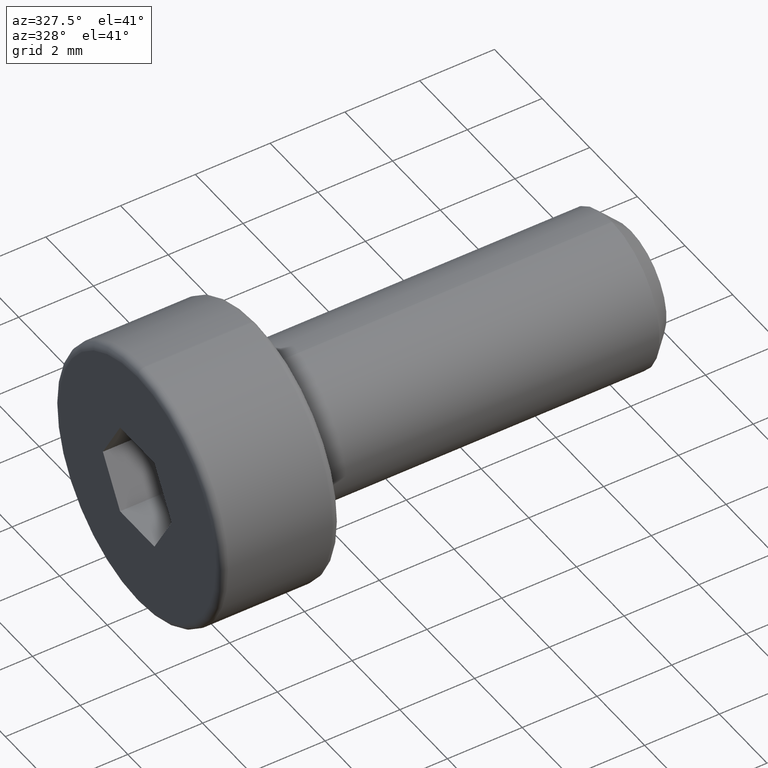
[diagram: clean part render]
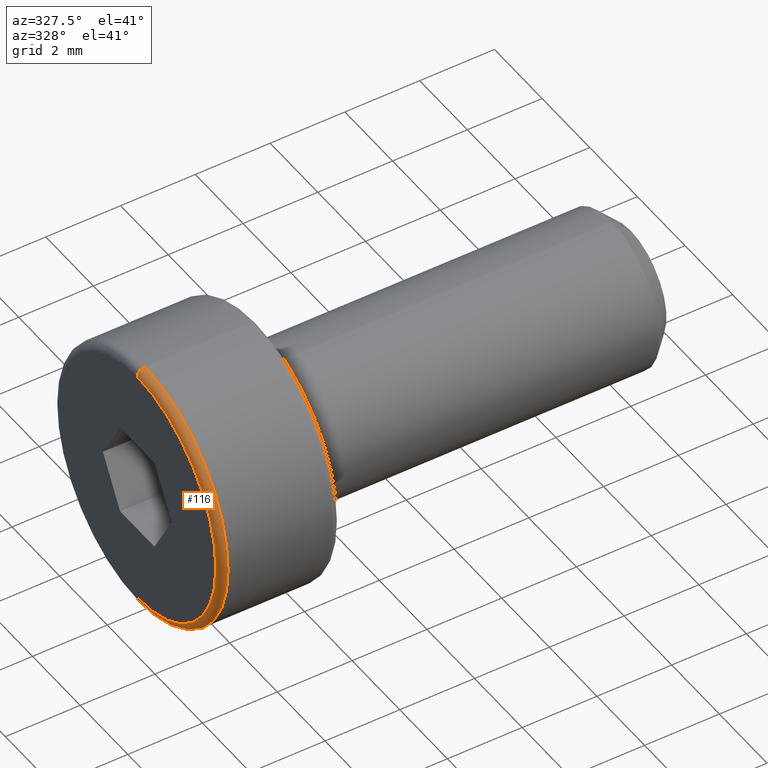
[diagram: same view with one face highlighted and labeled with its STEP entity id]
A machine part, auxiliary view. The second image highlights one B-rep face of the part: STEP entity #116.
In plain terms, the highlighted toroidal blend (fillet) surface has major radius 3.3 mm and minor (blend) radius 0.2 mm.
Its self-contained STEP definition (entity closure, byte-faithful):
#95 = DIRECTION ( 'NONE',  ( 0.0000000000000000000, 0.0000000000000000000, -1.000000000000000000 ) ) ;
#101 = VERTEX_POINT ( 'NONE', #782 ) ;
#106 = VERTEX_POINT ( 'NONE', #210 ) ;
#116 = ADVANCED_FACE ( 'NONE', ( #293 ), #162, .T. ) ;
#131 = CARTESIAN_POINT ( 'NONE',  ( -3.000000000000000000, 0.0000000000000000000, 0.0000000000000000000 ) ) ;
#135 = CARTESIAN_POINT ( 'NONE',  ( -3.000000000000000000, 4.041334437186266000E-016, 3.300000000000000300 ) ) ;
#148 = CARTESIAN_POINT ( 'NONE',  ( -3.000000000000000000, 4.286263797015737100E-016, 3.500000000000000400 ) ) ;
#162 = TOROIDAL_SURFACE ( 'NONE', #470, 3.300000000000000300, 0.2000000000000000100 ) ;
#182 = VERTEX_POINT ( 'NONE', #362 ) ;
#210 = CARTESIAN_POINT ( 'NONE',  ( -3.200000000000000200, 0.0000000000000000000, -3.300000000000000300 ) ) ;
#225 = EDGE_CURVE ( 'NONE', #101, #799, #426, .T. ) ;
#239 = ORIENTED_EDGE ( 'NONE', *, *, #225, .F. ) ;
#293 = FACE_OUTER_BOUND ( 'NONE', #350, .T. ) ;
#326 = CIRCLE ( 'NONE', #598, 0.2000000000000000900 ) ;
#341 = AXIS2_PLACEMENT_3D ( 'NONE', #408, #454, #796 ) ;
#342 = EDGE_CURVE ( 'NONE', #799, #182, #684, .T. ) ;
#350 = EDGE_LOOP ( 'NONE', ( #239, #703, #733, #761 ) ) ;
#362 = CARTESIAN_POINT ( 'NONE',  ( -3.000000000000000000, 0.0000000000000000000, -3.500000000000000400 ) ) ;
#408 = CARTESIAN_POINT ( 'NONE',  ( -3.200000000000000200, 0.0000000000000000000, 0.0000000000000000000 ) ) ;
#426 = CIRCLE ( 'NONE', #727, 0.2000000000000000900 ) ;
#431 = DIRECTION ( 'NONE',  ( 0.0000000000000000000, 0.0000000000000000000, -1.000000000000000000 ) ) ;
#437 = DIRECTION ( 'NONE',  ( 0.0000000000000000000, 1.000000000000000000, -1.224646799147353200E-016 ) ) ;
#454 = DIRECTION ( 'NONE',  ( -1.000000000000000000, -0.0000000000000000000, -0.0000000000000000000 ) ) ;
#458 = DIRECTION ( 'NONE',  ( 0.0000000000000000000, -1.000000000000000000, 0.0000000000000000000 ) ) ;
#460 = AXIS2_PLACEMENT_3D ( 'NONE', #131, #766, #493 ) ;
#464 = CARTESIAN_POINT ( 'NONE',  ( -3.000000000000000000, 0.0000000000000000000, -3.300000000000000300 ) ) ;
#470 = AXIS2_PLACEMENT_3D ( 'NONE', #792, #683, #431 ) ;
#493 = DIRECTION ( 'NONE',  ( 0.0000000000000000000, 0.0000000000000000000, -1.000000000000000000 ) ) ;
#568 = EDGE_CURVE ( 'NONE', #106, #101, #618, .T. ) ;
#598 = AXIS2_PLACEMENT_3D ( 'NONE', #464, #458, #95 ) ;
#611 = EDGE_CURVE ( 'NONE', #106, #182, #326, .T. ) ;
#618 = CIRCLE ( 'NONE', #341, 3.300000000000000300 ) ;
#683 = DIRECTION ( 'NONE',  ( 1.000000000000000000, 0.0000000000000000000, 0.0000000000000000000 ) ) ;
#684 = CIRCLE ( 'NONE', #460, 3.500000000000000400 ) ;
#689 = DIRECTION ( 'NONE',  ( 0.0000000000000000000, 1.224646799147353200E-016, 1.000000000000000000 ) ) ;
#703 = ORIENTED_EDGE ( 'NONE', *, *, #568, .F. ) ;
#727 = AXIS2_PLACEMENT_3D ( 'NONE', #135, #437, #689 ) ;
#733 = ORIENTED_EDGE ( 'NONE', *, *, #611, .T. ) ;
#761 = ORIENTED_EDGE ( 'NONE', *, *, #342, .F. ) ;
#766 = DIRECTION ( 'NONE',  ( 1.000000000000000000, 0.0000000000000000000, 0.0000000000000000000 ) ) ;
#782 = CARTESIAN_POINT ( 'NONE',  ( -3.200000000000000200, 4.163799117101001500E-016, 3.300000000000000300 ) ) ;
#792 = CARTESIAN_POINT ( 'NONE',  ( -3.000000000000000000, 0.0000000000000000000, 0.0000000000000000000 ) ) ;
#796 = DIRECTION ( 'NONE',  ( 0.0000000000000000000, 0.0000000000000000000, -1.000000000000000000 ) ) ;
#799 = VERTEX_POINT ( 'NONE', #148 ) ;